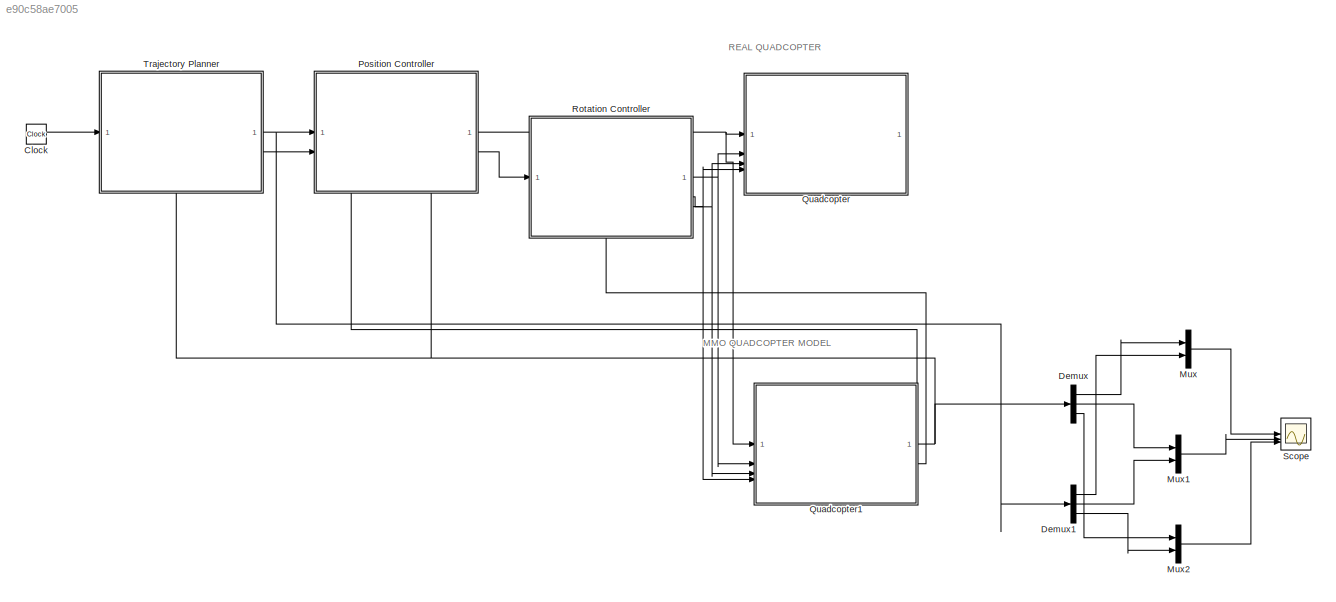
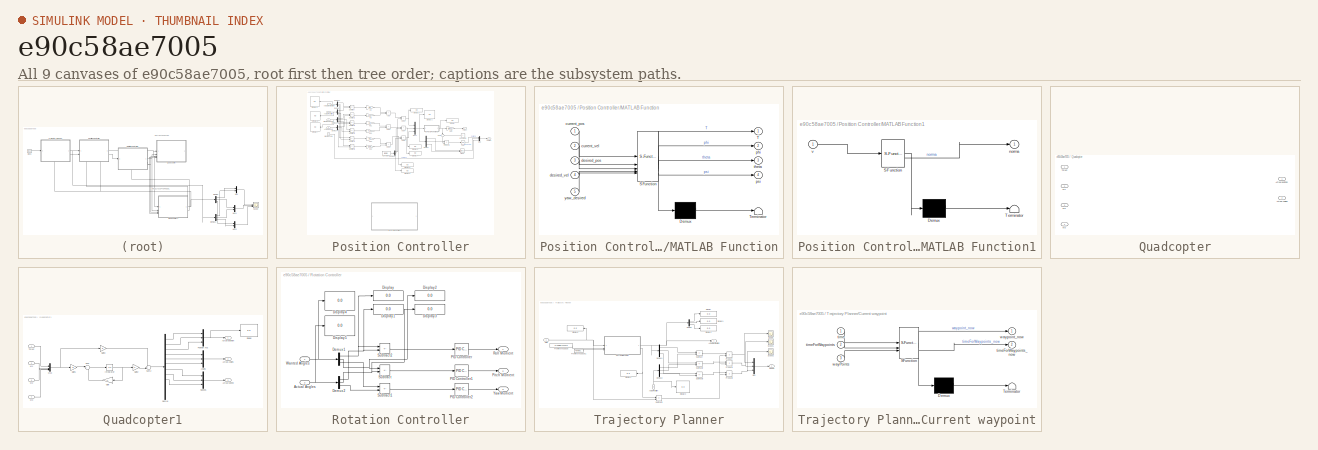
[diagram: thumbnail index - all 9 canvases of the model, root first then tree order]
MODEL slx_e90c58ae7005
KIND model
CONFIG AbsTol = auto
CONFIG EnableMultiTasking = off
CONFIG FixedStep = auto
CONFIG MaxStep = auto
CONFIG MinStep = auto
CONFIG RelTol = 1e-8
CONFIG SampleTimeConstraint = Unconstrained
CONFIG SolverName = VariableStepAuto
CONFIG StartTime = 0.0
CONFIG StopTime = 150
BLOCK [Clock] Clock
BLOCK [Demux] Demux
  Outputs = 3
BLOCK [Demux] Demux1
  Outputs = 3
BLOCK [Mux] Mux
  DisplayOption = bar
  Inputs = 2
BLOCK [Mux] Mux1
  DisplayOption = bar
  Inputs = 2
BLOCK [Mux] Mux2
  DisplayOption = bar
  Inputs = 2
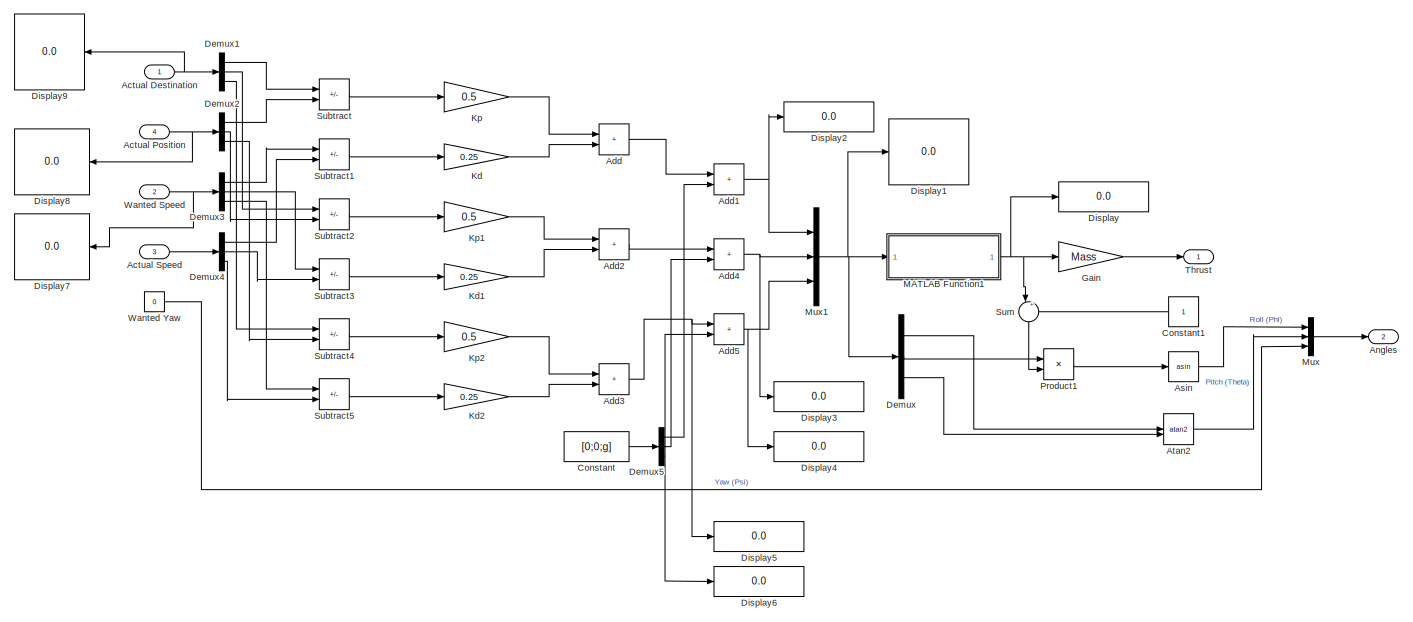
[diagram: Position Controller - part 1/2, full width, top band]
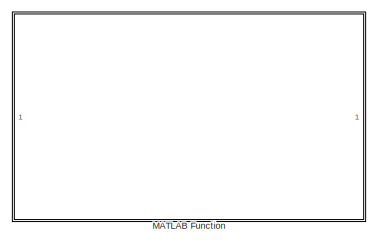
[diagram: Position Controller - part 2/2, bottom center region]
BLOCK [SubSystem] Position Controller
  PortSchema = {"entries":[{"content":{"sides":[{"content":{"connectorIds":["In1","In2"]},"type":"ConnectorPlacement.EquallySpacedRectSide","uuid":"80f29ff0-56da-481e-95f1-a9d4517a9ed9"},{"content":{"connectorIds":["Out1","Out2"],"side":"RIGHT"},"type":"ConnectorPlacement.EquallySpacedRectSide","uuid":"630d0718-5a0f-420d-89e4-ff766e1306d8"},{"content":{"side":"TOP"},"type":"ConnectorPlacement.EquallySpacedRectSi...<+390ch>
BLOCK [Inport] Position Controller/Actual Destination
BLOCK [Inport] Position Controller/Actual Position
  Port = 4
BLOCK [Inport] Position Controller/Actual Speed
  Port = 3
BLOCK [Sum] Position Controller/Add
  IconShape = rectangular
BLOCK [Sum] Position Controller/Add1
  IconShape = rectangular
BLOCK [Sum] Position Controller/Add2
  IconShape = rectangular
BLOCK [Sum] Position Controller/Add3
  IconShape = rectangular
BLOCK [Sum] Position Controller/Add4
  IconShape = rectangular
BLOCK [Sum] Position Controller/Add5
  IconShape = rectangular
BLOCK [Outport] Position Controller/Angles
  Port = 2
BLOCK [Trigonometry] Position Controller/Asin
  Operator = asin
BLOCK [Trigonometry] Position Controller/Atan2
  Operator = atan2
BLOCK [Constant] Position Controller/Constant
  Value = [0;0;g]
BLOCK [Constant] Position Controller/Constant1
  NameLocation = top
BLOCK [Demux] Position Controller/Demux
  Outputs = 3
BLOCK [Demux] Position Controller/Demux1
  Outputs = 3
BLOCK [Demux] Position Controller/Demux2
  Outputs = 3
BLOCK [Demux] Position Controller/Demux3
  Outputs = 3
BLOCK [Demux] Position Controller/Demux4
  Outputs = 3
BLOCK [Demux] Position Controller/Demux5
  Outputs = 3
BLOCK [Display] Position Controller/Display
  Decimation = 1
BLOCK [Display] Position Controller/Display1
  Decimation = 1
BLOCK [Display] Position Controller/Display2
  Decimation = 1
BLOCK [Display] Position Controller/Display3
  Decimation = 1
BLOCK [Display] Position Controller/Display4
  Decimation = 1
BLOCK [Display] Position Controller/Display5
  Decimation = 1
BLOCK [Display] Position Controller/Display6
  Decimation = 1
BLOCK [Display] Position Controller/Display7
  Decimation = 1
  NameLocation = top
BLOCK [Display] Position Controller/Display8
  Decimation = 1
  NameLocation = top
BLOCK [Display] Position Controller/Display9
  Decimation = 1
  NameLocation = top
BLOCK [Gain] Position Controller/Gain
  Gain = Mass
BLOCK [Gain] Position Controller/Kd
  Gain = 0.25
BLOCK [Gain] Position Controller/Kd1
  Gain = 0.25
BLOCK [Gain] Position Controller/Kd2
  Gain = 0.25
BLOCK [Gain] Position Controller/Kp
  Gain = 0.5
BLOCK [Gain] Position Controller/Kp1
  Gain = 0.5
BLOCK [Gain] Position Controller/Kp2
  Gain = 0.5
BLOCK [SubSystem] Position Controller/MATLAB Function
  Commented = on
  ErrorFcn = Stateflow.Translate.translate
  PermitHierarchicalResolution = ExplicitOnly
  SFBlockType = MATLAB Function
  TreatAsAtomicUnit = on
BLOCK [Demux] Position Controller/MATLAB Function/ Demux 
  Outputs = 1
BLOCK [S-Function] Position Controller/MATLAB Function/ SFunction 
  EnableBusSupport = on
  FunctionName = sf_sfun
  PortCounts = [5 5]
  SFcnIsStateOwnerBlock = off
  SFunctionDeploymentMode = off
  Tag = Stateflow S-Function 1
BLOCK [Terminator] Position Controller/MATLAB Function/ Terminator 
BLOCK [Outport] Position Controller/MATLAB Function/T
BLOCK [Inport] Position Controller/MATLAB Function/current_pos
BLOCK [Inport] Position Controller/MATLAB Function/current_vel
  Port = 2
BLOCK [Inport] Position Controller/MATLAB Function/desired_pos
  Port = 3
BLOCK [Inport] Position Controller/MATLAB Function/desired_vel
  Port = 4
BLOCK [Outport] Position Controller/MATLAB Function/phi
  Port = 2
BLOCK [Outport] Position Controller/MATLAB Function/psi
  Port = 4
BLOCK [Outport] Position Controller/MATLAB Function/theta
  Port = 3
BLOCK [Inport] Position Controller/MATLAB Function/yaw_desired
  Port = 5
BLOCK [SubSystem] Position Controller/MATLAB Function1
  ErrorFcn = Stateflow.Translate.translate
  PermitHierarchicalResolution = ExplicitOnly
  SFBlockType = MATLAB Function
  TreatAsAtomicUnit = on
BLOCK [Demux] Position Controller/MATLAB Function1/ Demux 
  Outputs = 1
BLOCK [S-Function] Position Controller/MATLAB Function1/ SFunction 
  EnableBusSupport = on
  FunctionName = sf_sfun
  PortCounts = [1 2]
  SFcnIsStateOwnerBlock = off
  SFunctionDeploymentMode = off
  Tag = Stateflow S-Function 3
BLOCK [Terminator] Position Controller/MATLAB Function1/ Terminator 
BLOCK [Outport] Position Controller/MATLAB Function1/norma
BLOCK [Inport] Position Controller/MATLAB Function1/v
BLOCK [Mux] Position Controller/Mux
  DisplayOption = bar
  Inputs = 3
BLOCK [Mux] Position Controller/Mux1
  DisplayOption = bar
  Inputs = 3
BLOCK [Product] Position Controller/Product1
  Inputs = */
BLOCK [Sum] Position Controller/Subtract
  IconShape = rectangular
  Inputs = +-
BLOCK [Sum] Position Controller/Subtract1
  IconShape = rectangular
  Inputs = +-
BLOCK [Sum] Position Controller/Subtract2
  IconShape = rectangular
  Inputs = +-
BLOCK [Sum] Position Controller/Subtract3
  IconShape = rectangular
  Inputs = +-
BLOCK [Sum] Position Controller/Subtract4
  IconShape = rectangular
  Inputs = +-
BLOCK [Sum] Position Controller/Subtract5
  IconShape = rectangular
  Inputs = +-
BLOCK [Sum] Position Controller/Sum
  Inputs = |++
  NameLocation = left
BLOCK [Outport] Position Controller/Thrust
BLOCK [Inport] Position Controller/Wanted Speed
  Port = 2
BLOCK [Constant] Position Controller/Wanted Yaw
  Value = 0
BLOCK [SubSystem] Quadcopter
BLOCK [Outport] Quadcopter/Actual Angles
  Port = 2
BLOCK [Outport] Quadcopter/Actual position
BLOCK [Inport] Quadcopter/M1
  Port = 2
BLOCK [Inport] Quadcopter/M2
  Port = 3
BLOCK [Inport] Quadcopter/M3
  Port = 4
BLOCK [Inport] Quadcopter/Thrust
BLOCK [SubSystem] Quadcopter1
BLOCK [Outport] Quadcopter1/Actual Angles
  Port = 2
BLOCK [Outport] Quadcopter1/Actual position
BLOCK [Outport] Quadcopter1/Actual speed
  Port = 3
BLOCK [Mux] Quadcopter1/Angles
  DisplayOption = bar
  Inputs = 3
BLOCK [Demux] Quadcopter1/Demux
  Outputs = 12
BLOCK [Display] Quadcopter1/Display
  Decimation = 1
BLOCK [Gain] Quadcopter1/Gain
  Gain = A
  Multiplication = Matrix(K*u)
  NameLocation = top
BLOCK [Gain] Quadcopter1/Gain1
  Gain = B
  Multiplication = Matrix(K*u)
BLOCK [Gain] Quadcopter1/Gain2
  Gain = C
  Multiplication = Matrix(K*u)
BLOCK [Gain] Quadcopter1/Gain3
  Gain = D
  Multiplication = Matrix(K*u)
BLOCK [Integrator] Quadcopter1/Integrator
  InitialCondition = [0 0 -6 0 0 0 0 0 0 0 0 0]
BLOCK [Inport] Quadcopter1/M1
  Port = 2
BLOCK [Inport] Quadcopter1/M2
  Port = 3
BLOCK [Inport] Quadcopter1/M3
  Port = 4
BLOCK [Mux] Quadcopter1/Mux
  DisplayOption = bar
BLOCK [Mux] Quadcopter1/Position XYZ
  DisplayOption = bar
  Inputs = 3
BLOCK [Mux] Quadcopter1/Speeds
  DisplayOption = bar
  Inputs = 3
BLOCK [Sum] Quadcopter1/Sum
  Inputs = |++
BLOCK [Sum] Quadcopter1/Sum2
  Inputs = ++|
BLOCK [Inport] Quadcopter1/Thrust
BLOCK [SubSystem] Rotation Controller
  PortSchema = {"entries":[{"content":{"sides":[{"content":{"connectorIds":["In1"]},"type":"ConnectorPlacement.EquallySpacedRectSide","uuid":"80f29ff0-56da-481e-95f1-a9d4517a9ed9"},{"content":{"connectorIds":["Out1","Out2","Out3"],"side":"RIGHT"},"type":"ConnectorPlacement.EquallySpacedRectSide","uuid":"630d0718-5a0f-420d-89e4-ff766e1306d8"},{"content":{"side":"TOP"},"type":"ConnectorPlacement.EquallySpacedRectS...<+385ch>
BLOCK [Inport] Rotation Controller/Actual Angles
  Port = 2
BLOCK [Demux] Rotation Controller/Demux1
  Outputs = 3
BLOCK [Demux] Rotation Controller/Demux2
  Outputs = 3
BLOCK [Display] Rotation Controller/Display
  Decimation = 1
BLOCK [Display] Rotation Controller/Display1
  Decimation = 1
BLOCK [Display] Rotation Controller/Display2
  Decimation = 1
BLOCK [Display] Rotation Controller/Display3
  Decimation = 1
BLOCK [Display] Rotation Controller/Display4
  Decimation = 1
BLOCK [Display] Rotation Controller/Display5
  Decimation = 1
BLOCK [Reference] Rotation Controller/PID Controller  REF=slpidlib/PID Controller
  LibrarySourceBlock = simulink/Continuous/PID Controller
  SourceBlock = slpidlib/PID Controller
  SourceType = PID 1dof
BLOCK [Reference] Rotation Controller/PID Controller1  REF=slpidlib/PID Controller
  LibrarySourceBlock = simulink/Continuous/PID Controller
  SourceBlock = slpidlib/PID Controller
  SourceType = PID 1dof
BLOCK [Reference] Rotation Controller/PID Controller2  REF=slpidlib/PID Controller
  LibrarySourceBlock = simulink/Continuous/PID Controller
  SourceBlock = slpidlib/PID Controller
  SourceType = PID 1dof
BLOCK [Outport] Rotation Controller/Pitch Moment
  Port = 2
BLOCK [Outport] Rotation Controller/Roll Moment
BLOCK [Sum] Rotation Controller/Subtract
  IconShape = rectangular
  Inputs = +-
BLOCK [Sum] Rotation Controller/Subtract1
  IconShape = rectangular
  Inputs = +-
BLOCK [Sum] Rotation Controller/Subtract2
  IconShape = rectangular
  Inputs = +-
BLOCK [Inport] Rotation Controller/Wanted Angles
BLOCK [Outport] Rotation Controller/Yaw Moment
  Port = 3
BLOCK [Scope] Scope
  Floating = off
  NumInputPorts = 3
  ScopeSpecificationString = Simulink.scopes.TimeScopeBlockCfg('CurrentConfiguration', extmgr.ConfigurationSet(extmgr.Configuration('Core','General UI',true),extmgr.Configuration('Core','Source UI',true),extmgr.Configuration('Sources','WiredSimulink',true,'DataLoggingVariableName','ScopeData1'),extmgr.Configuration('Visuals','Time Domain',true,'SerializedDisplays',{struct('MinYLimReal','-0.17996','MaxYLimReal','1.6196','YLabe...<+3019ch>
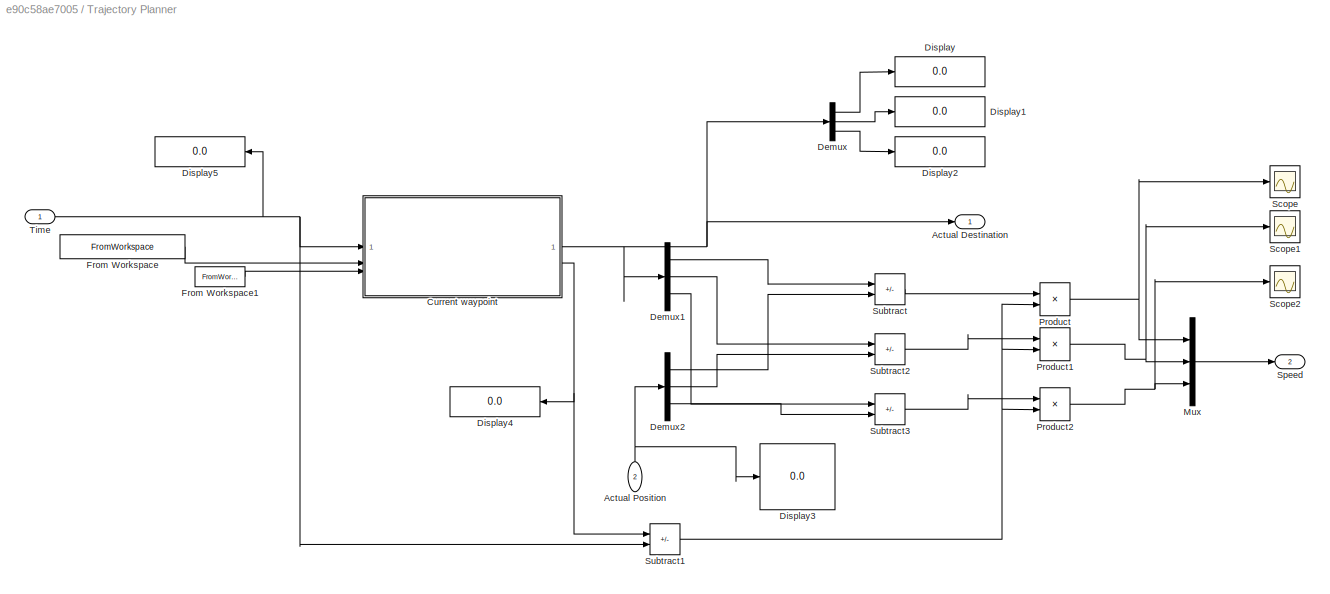
BLOCK [SubSystem] Trajectory Planner
  PortSchema = {"entries":[{"content":{"sides":[{"content":{"connectorIds":["In1"]},"type":"ConnectorPlacement.EquallySpacedRectSide","uuid":"80f29ff0-56da-481e-95f1-a9d4517a9ed9"},{"content":{"connectorIds":["Out1","Out2"],"side":"RIGHT"},"type":"ConnectorPlacement.EquallySpacedRectSide","uuid":"630d0718-5a0f-420d-89e4-ff766e1306d8"},{"content":{"side":"TOP"},"type":"ConnectorPlacement.EquallySpacedRectSide","u...<+378ch>
BLOCK [Outport] Trajectory Planner/Actual Destination
BLOCK [Inport] Trajectory Planner/Actual Position
  NameLocation = right
  Port = 2
BLOCK [SubSystem] Trajectory Planner/Current waypoint
  ErrorFcn = Stateflow.Translate.translate
  PermitHierarchicalResolution = ExplicitOnly
  SFBlockType = MATLAB Function
  TreatAsAtomicUnit = on
BLOCK [Demux] Trajectory Planner/Current waypoint/ Demux 
  Outputs = 1
BLOCK [S-Function] Trajectory Planner/Current waypoint/ SFunction 
  EnableBusSupport = on
  FunctionName = sf_sfun
  PortCounts = [3 3]
  SFcnIsStateOwnerBlock = off
  SFunctionDeploymentMode = off
  Tag = Stateflow S-Function 2
BLOCK [Terminator] Trajectory Planner/Current waypoint/ Terminator 
BLOCK [Inport] Trajectory Planner/Current waypoint/time
BLOCK [Inport] Trajectory Planner/Current waypoint/timeForWaypoints
  Port = 2
BLOCK [Outport] Trajectory Planner/Current waypoint/timeForWaypoints_now
  Port = 2
BLOCK [Inport] Trajectory Planner/Current waypoint/wayPoints
  Port = 3
BLOCK [Outport] Trajectory Planner/Current waypoint/waypoint_now
BLOCK [Demux] Trajectory Planner/Demux
  Outputs = 3
BLOCK [Demux] Trajectory Planner/Demux1
  Outputs = 3
BLOCK [Demux] Trajectory Planner/Demux2
  Outputs = 3
BLOCK [Display] Trajectory Planner/Display
  Decimation = 1
BLOCK [Display] Trajectory Planner/Display1
  Decimation = 1
BLOCK [Display] Trajectory Planner/Display2
  Decimation = 1
BLOCK [Display] Trajectory Planner/Display3
  Decimation = 1
BLOCK [Display] Trajectory Planner/Display4
  Decimation = 1
  NameLocation = top
BLOCK [Display] Trajectory Planner/Display5
  Decimation = 1
  NameLocation = top
BLOCK [FromWorkspace] Trajectory Planner/From Workspace
  VariableName = timeForWaypointPasage
BLOCK [FromWorkspace] Trajectory Planner/From Workspace1
  VariableName = wayPoints
BLOCK [Mux] Trajectory Planner/Mux
  DisplayOption = bar
  Inputs = 3
BLOCK [Product] Trajectory Planner/Product
  Inputs = */
BLOCK [Product] Trajectory Planner/Product1
  Inputs = */
BLOCK [Product] Trajectory Planner/Product2
  Inputs = */
BLOCK [Scope] Trajectory Planner/Scope
  Floating = off
  NumInputPorts = 1
  ScopeSpecificationString = Simulink.scopes.TimeScopeBlockCfg('CurrentConfiguration', extmgr.ConfigurationSet(extmgr.Configuration('Core','General UI',true),extmgr.Configuration('Core','Source UI',true),extmgr.Configuration('Sources','WiredSimulink',true),extmgr.Configuration('Visuals','Time Domain',true,'SerializedDisplays',{struct('MinYLimReal','-0.0025','MaxYLimReal','0.0225','YLabelReal','','MinYLimMag','0.00000','MaxYLi...<+1443ch>
BLOCK [Scope] Trajectory Planner/Scope1
  Floating = off
  NumInputPorts = 1
  ScopeSpecificationString = Simulink.scopes.TimeScopeBlockCfg('CurrentConfiguration', extmgr.ConfigurationSet(extmgr.Configuration('Core','General UI',true),extmgr.Configuration('Core','Source UI',true),extmgr.Configuration('Sources','WiredSimulink',true,'DataLoggingVariableName','ScopeData1'),extmgr.Configuration('Visuals','Time Domain',true,'SerializedDisplays',{struct('MinYLimReal','-0.0025','MaxYLimReal','0.0225','YLabel...<+1483ch>
BLOCK [Scope] Trajectory Planner/Scope2
  Floating = off
  NumInputPorts = 1
  ScopeSpecificationString = Simulink.scopes.TimeScopeBlockCfg('CurrentConfiguration', extmgr.ConfigurationSet(extmgr.Configuration('Core','General UI',true),extmgr.Configuration('Core','Source UI',true),extmgr.Configuration('Sources','WiredSimulink',true,'DataLoggingVariableName','ScopeData2'),extmgr.Configuration('Visuals','Time Domain',true,'SerializedDisplays',{struct('MinYLimReal','-24298058339795091451771689470024625898...<+1917ch>
BLOCK [Outport] Trajectory Planner/Speed
  Port = 2
BLOCK [Sum] Trajectory Planner/Subtract
  IconShape = rectangular
  Inputs = +-
BLOCK [Sum] Trajectory Planner/Subtract1
  IconShape = rectangular
  Inputs = +-
BLOCK [Sum] Trajectory Planner/Subtract2
  IconShape = rectangular
  Inputs = +-
BLOCK [Sum] Trajectory Planner/Subtract3
  IconShape = rectangular
  Inputs = +-
BLOCK [Inport] Trajectory Planner/Time
ANNOTATION (root): MMO QUADCOPTER MODEL
ANNOTATION (root): REAL QUADCOPTER
LINE Clock:1 -> Trajectory Planner:1
LINE Demux1:1 -> Mux:2
LINE Demux1:2 -> Mux1:2
LINE Demux1:3 -> Mux2:2
LINE Demux:1 -> Mux:1
LINE Demux:2 -> Mux1:1
LINE Demux:3 -> Mux2:1
LINE Mux1:1 -> Scope:2
LINE Mux2:1 -> Scope:3
LINE Mux:1 -> Scope:1
NET Position Controller/Actual Destination:1 -> Position Controller/Demux1:1, Position Controller/Display9:1
NET Position Controller/Actual Position:1 -> Position Controller/Demux2:1, Position Controller/Display8:1
LINE Position Controller/Actual Speed:1 -> Position Controller/Demux4:1
NET Position Controller/Add1:1 -> Position Controller/Display2:1, Position Controller/Mux1:1
LINE Position Controller/Add2:1 -> Position Controller/Add4:1
NET Position Controller/Add3:1 -> Position Controller/Add5:1, Position Controller/Display5:1
NET Position Controller/Add4:1 -> Position Controller/Display3:1, Position Controller/Mux1:2
NET Position Controller/Add5:1 -> Position Controller/Display4:1, Position Controller/Mux1:3
LINE Position Controller/Add:1 -> Position Controller/Add1:1
LINE Position Controller/Asin:1 -> Position Controller/Mux:1
LINE Position Controller/Atan2:1 -> Position Controller/Mux:2
LINE Position Controller/Constant1:1 -> Position Controller/Sum:2
LINE Position Controller/Constant:1 -> Position Controller/Demux5:1
LINE Position Controller/Demux1:1 -> Position Controller/Subtract:1
LINE Position Controller/Demux1:2 -> Position Controller/Subtract2:1
LINE Position Controller/Demux1:3 -> Position Controller/Subtract4:1
LINE Position Controller/Demux2:1 -> Position Controller/Subtract:2
LINE Position Controller/Demux2:2 -> Position Controller/Subtract2:2
LINE Position Controller/Demux2:3 -> Position Controller/Subtract4:2
LINE Position Controller/Demux3:1 -> Position Controller/Subtract1:1
LINE Position Controller/Demux3:2 -> Position Controller/Subtract3:1
LINE Position Controller/Demux3:3 -> Position Controller/Subtract5:1
LINE Position Controller/Demux4:1 -> Position Controller/Subtract1:2
LINE Position Controller/Demux4:2 -> Position Controller/Subtract3:2
LINE Position Controller/Demux4:3 -> Position Controller/Subtract5:2
LINE Position Controller/Demux5:1 -> Position Controller/Add1:2
LINE Position Controller/Demux5:2 -> Position Controller/Add4:2
NET Position Controller/Demux5:3 -> Position Controller/Add5:2, Position Controller/Display6:1
LINE Position Controller/Demux:1 -> Position Controller/Atan2:1
LINE Position Controller/Demux:2 -> Position Controller/Product1:1
LINE Position Controller/Demux:3 -> Position Controller/Atan2:2
LINE Position Controller/Gain:1 -> Position Controller/Thrust:1
LINE Position Controller/Kd1:1 -> Position Controller/Add2:2
LINE Position Controller/Kd2:1 -> Position Controller/Add3:2
LINE Position Controller/Kd:1 -> Position Controller/Add:2
LINE Position Controller/Kp1:1 -> Position Controller/Add2:1
LINE Position Controller/Kp2:1 -> Position Controller/Add3:1
LINE Position Controller/Kp:1 -> Position Controller/Add:1
NET Position Controller/MATLAB Function1:1 -> Position Controller/Display:1, Position Controller/Gain:1, Position Controller/Sum:1
NET Position Controller/Mux1:1 -> Position Controller/Demux:1, Position Controller/Display1:1, Position Controller/MATLAB Function1:1
LINE Position Controller/Mux:1 -> Position Controller/Angles:1
LINE Position Controller/Product1:1 -> Position Controller/Asin:1
LINE Position Controller/Subtract1:1 -> Position Controller/Kd:1
LINE Position Controller/Subtract2:1 -> Position Controller/Kp1:1
LINE Position Controller/Subtract3:1 -> Position Controller/Kd1:1
LINE Position Controller/Subtract4:1 -> Position Controller/Kp2:1
LINE Position Controller/Subtract5:1 -> Position Controller/Kd2:1
LINE Position Controller/Subtract:1 -> Position Controller/Kp:1
LINE Position Controller/Sum:1 -> Position Controller/Product1:2
NET Position Controller/Wanted Speed:1 -> Position Controller/Demux3:1, Position Controller/Display7:1
LINE Position Controller/Wanted Yaw:1 -> Position Controller/Mux:3
NET Position Controller:1 -> Quadcopter1:1, Quadcopter:1
LINE Position Controller:2 -> Rotation Controller:1
LINE Quadcopter1/Angles:1 -> Quadcopter1/Actual Angles:1
LINE Quadcopter1/Demux:1 -> Quadcopter1/Position XYZ:1
LINE Quadcopter1/Demux:2 -> Quadcopter1/Position XYZ:2
LINE Quadcopter1/Demux:3 -> Quadcopter1/Position XYZ:3
LINE Quadcopter1/Demux:4 -> Quadcopter1/Angles:1
LINE Quadcopter1/Demux:5 -> Quadcopter1/Angles:2
LINE Quadcopter1/Demux:6 -> Quadcopter1/Angles:3
LINE Quadcopter1/Demux:7 -> Quadcopter1/Speeds:1
LINE Quadcopter1/Demux:8 -> Quadcopter1/Speeds:2
LINE Quadcopter1/Demux:9 -> Quadcopter1/Speeds:3
LINE Quadcopter1/Gain1:1 -> Quadcopter1/Sum:1
LINE Quadcopter1/Gain2:1 -> Quadcopter1/Sum2:2
LINE Quadcopter1/Gain3:1 -> Quadcopter1/Sum2:1
LINE Quadcopter1/Gain:1 -> Quadcopter1/Sum:2
NET Quadcopter1/Integrator:1 -> Quadcopter1/Gain2:1, Quadcopter1/Gain:1
LINE Quadcopter1/M1:1 -> Quadcopter1/Mux:2
LINE Quadcopter1/M2:1 -> Quadcopter1/Mux:3
LINE Quadcopter1/M3:1 -> Quadcopter1/Mux:4
NET Quadcopter1/Mux:1 -> Quadcopter1/Gain1:1, Quadcopter1/Gain3:1
NET Quadcopter1/Position XYZ:1 -> Quadcopter1/Actual position:1, Quadcopter1/Display:1
LINE Quadcopter1/Speeds:1 -> Quadcopter1/Actual speed:1
LINE Quadcopter1/Sum2:1 -> Quadcopter1/Demux:1
LINE Quadcopter1/Sum:1 -> Quadcopter1/Integrator:1
LINE Quadcopter1/Thrust:1 -> Quadcopter1/Mux:1
NET Quadcopter1:1 -> Demux:1, Position Controller:4, Trajectory Planner:2
LINE Quadcopter1:2 -> Rotation Controller:2
LINE Quadcopter1:3 -> Position Controller:3
NET Rotation Controller/Actual Angles:1 -> Rotation Controller/Demux2:1, Rotation Controller/Display5:1
NET Rotation Controller/Demux1:1 -> Rotation Controller/Display:1, Rotation Controller/Subtract2:1
NET Rotation Controller/Demux1:2 -> Rotation Controller/Display2:1, Rotation Controller/Subtract:1
LINE Rotation Controller/Demux1:3 -> Rotation Controller/Subtract1:1
NET Rotation Controller/Demux2:1 -> Rotation Controller/Display1:1, Rotation Controller/Subtract2:2
NET Rotation Controller/Demux2:2 -> Rotation Controller/Display3:1, Rotation Controller/Subtract:2
LINE Rotation Controller/Demux2:3 -> Rotation Controller/Subtract1:2
LINE Rotation Controller/PID Controller1:1 -> Rotation Controller/Pitch Moment:1
LINE Rotation Controller/PID Controller2:1 -> Rotation Controller/Yaw Moment:1
LINE Rotation Controller/PID Controller:1 -> Rotation Controller/Roll Moment:1
LINE Rotation Controller/Subtract1:1 -> Rotation Controller/PID Controller2:1
LINE Rotation Controller/Subtract2:1 -> Rotation Controller/PID Controller:1
LINE Rotation Controller/Subtract:1 -> Rotation Controller/PID Controller1:1
NET Rotation Controller/Wanted Angles:1 -> Rotation Controller/Demux1:1, Rotation Controller/Display4:1
NET Rotation Controller:1 -> Quadcopter1:2, Quadcopter:2
NET Rotation Controller:2 -> Quadcopter1:3, Quadcopter:3
NET Rotation Controller:3 -> Quadcopter1:4, Quadcopter:4
NET Trajectory Planner/Actual Position:1 -> Trajectory Planner/Demux2:1, Trajectory Planner/Display3:1
NET Trajectory Planner/Current waypoint:1 -> Trajectory Planner/Actual Destination:1, Trajectory Planner/Demux1:1, Trajectory Planner/Demux:1
NET Trajectory Planner/Current waypoint:2 -> Trajectory Planner/Display4:1, Trajectory Planner/Subtract1:1
LINE Trajectory Planner/Demux1:1 -> Trajectory Planner/Subtract:1
LINE Trajectory Planner/Demux1:2 -> Trajectory Planner/Subtract2:1
LINE Trajectory Planner/Demux1:3 -> Trajectory Planner/Subtract3:1
LINE Trajectory Planner/Demux2:1 -> Trajectory Planner/Subtract:2
LINE Trajectory Planner/Demux2:2 -> Trajectory Planner/Subtract2:2
LINE Trajectory Planner/Demux2:3 -> Trajectory Planner/Subtract3:2
LINE Trajectory Planner/Demux:1 -> Trajectory Planner/Display:1
LINE Trajectory Planner/Demux:2 -> Trajectory Planner/Display1:1
LINE Trajectory Planner/Demux:3 -> Trajectory Planner/Display2:1
LINE Trajectory Planner/From Workspace1:1 -> Trajectory Planner/Current waypoint:3
LINE Trajectory Planner/From Workspace:1 -> Trajectory Planner/Current waypoint:2
LINE Trajectory Planner/Mux:1 -> Trajectory Planner/Speed:1
NET Trajectory Planner/Product1:1 -> Trajectory Planner/Mux:2, Trajectory Planner/Scope1:1
NET Trajectory Planner/Product2:1 -> Trajectory Planner/Mux:3, Trajectory Planner/Scope2:1
NET Trajectory Planner/Product:1 -> Trajectory Planner/Mux:1, Trajectory Planner/Scope:1
NET Trajectory Planner/Subtract1:1 -> Trajectory Planner/Product1:2, Trajectory Planner/Product2:2, Trajectory Planner/Product:2
LINE Trajectory Planner/Subtract2:1 -> Trajectory Planner/Product1:1
LINE Trajectory Planner/Subtract3:1 -> Trajectory Planner/Product2:1
LINE Trajectory Planner/Subtract:1 -> Trajectory Planner/Product:1
NET Trajectory Planner/Time:1 -> Trajectory Planner/Current waypoint:1, Trajectory Planner/Display5:1, Trajectory Planner/Subtract1:2
NET Trajectory Planner:1 -> Demux1:1, Position Controller:1
LINE Trajectory Planner:2 -> Position Controller:2
note: NET lines group one-source signal fan-out (src -> all destinations, sorted); 1:1 wires keep LINE
CHART Position Controller/MATLAB Function states=1 transitions=1
  STATE_LABEL 'eML_blk_kernel()'
  STATE_LABEL 'SCRIPT:\nfunction [T, phi, theta, psi] = calculateThrustAndAngles(current_pos, current_vel, desired_pos, desired_vel, yaw_desired)\n    \n    g = 9.81;\n    Kp = 0.5;\n    Kd = 0.25;\n    mass = 1.3;\n\n    % Chyba polohy a rychlosti\n    e_pos = desired_pos - current_pos;\n    e_vel = desired_vel - current_vel;\n\n    % Požadované zrychlení\n    a_desired = Kp * e_pos + Kd * e_vel;\n\n    % Celkové zrychlení vč...<+328ch>'
CHART Trajectory Planner/Current waypoint states=1 transitions=1
  STATE_LABEL 'eML_blk_kernel()'
  STATE_LABEL 'SCRIPT:\nfunction [waypoint_now,timeForWaypoints_now]= fcn(time, timeForWaypoints, wayPoints)\n    \n    timeForWaypoints = [100,200,300,400,500]; % [s]\n\n    % Waypoints - these points must be flown by quadcopter\n    wayPoints = [0 0 -6;        % [X, Y, Z] - waypoint in [m]\n             1 1 -10;\n             1 2 -4;\n             2 2 -5;\n             3 1 -6];\n    \n    % Počet waypointů\n    numWaypoint...<+443ch>'
CHART Position Controller/MATLAB Function1 states=1 transitions=1
  STATE_LABEL 'eML_blk_kernel()'
  STATE_LABEL 'SCRIPT:\nfunction norma = vector_norm(v)\n    norma = norm(v);\nend'
CHART  states=0 transitions=0
CHART  states=0 transitions=0
CHART  states=0 transitions=0
